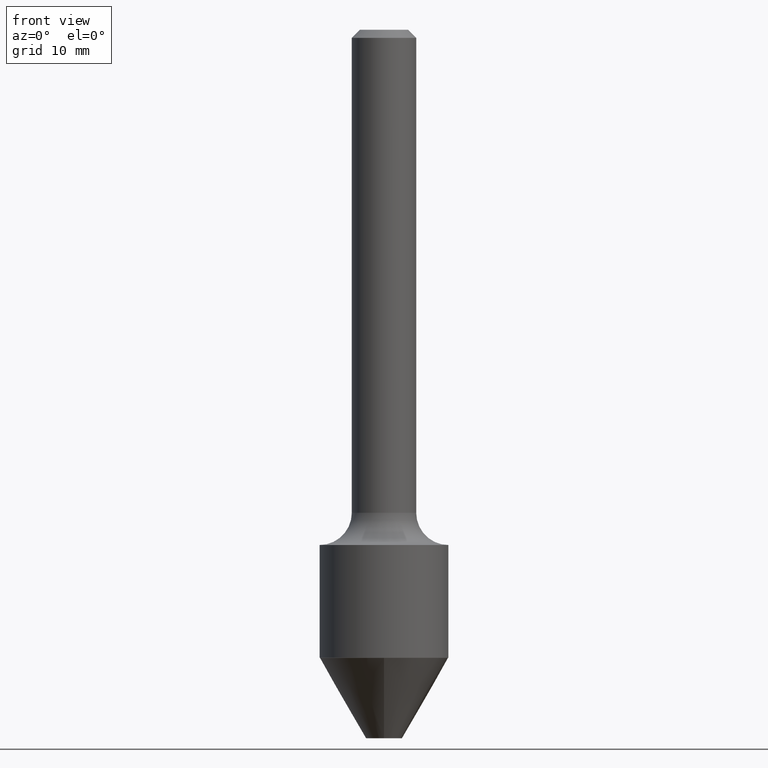
[diagram: clean part render]
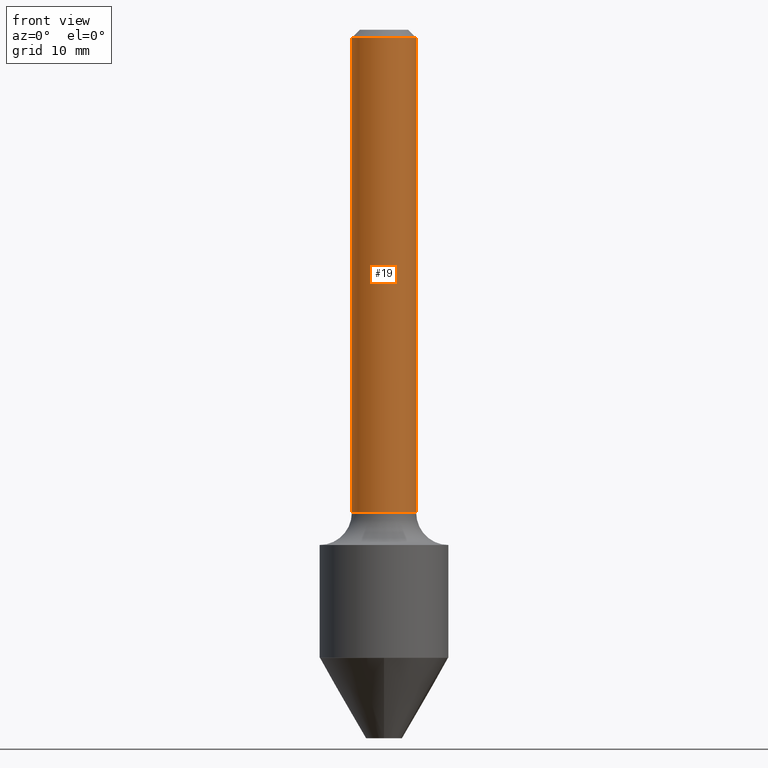
[diagram: same view with one face highlighted and labeled with its STEP entity id]
A machine part, front view. The second image highlights one B-rep face of the part: STEP entity #19.
In plain terms, the highlighted cylindrical surface (edge-blend (fillet) strip) has radius 3.175 mm, axis along (-0, 0, 1).
Its self-contained STEP definition (entity closure, byte-faithful):
#2 = VERTEX_POINT ( 'NONE', #326 ) ;
#3 = CYLINDRICAL_SURFACE ( 'NONE', #356, 0.1250000000000001110 ) ;
#19 = ADVANCED_FACE ( 'NONE', ( #46 ), #3, .T. ) ;
#27 = DIRECTION ( 'NONE',  ( -2.445468806185136597E-29, 3.491481338843145583E-15, 1.000000000000000000 ) ) ;
#36 = CARTESIAN_POINT ( 'NONE',  ( 0.1250000000000002498, -7.419397845041683624E-15, -1.875000000000000000 ) ) ;
#38 = DIRECTION ( 'NONE',  ( 1.000000000000000000, -6.982962677686267499E-15, 4.876176775795936353E-29 ) ) ;
#46 = FACE_OUTER_BOUND ( 'NONE', #158, .T. ) ;
#49 = LINE ( 'NONE', #376, #142 ) ;
#66 = CIRCLE ( 'NONE', #377, 0.1250000000000000000 ) ;
#75 = EDGE_CURVE ( 'NONE', #399, #2, #185, .T. ) ;
#78 = EDGE_CURVE ( 'NONE', #123, #399, #336, .T. ) ;
#107 = AXIS2_PLACEMENT_3D ( 'NONE', #502, #27, #223 ) ;
#118 = ORIENTED_EDGE ( 'NONE', *, *, #78, .T. ) ;
#123 = VERTEX_POINT ( 'NONE', #347 ) ;
#128 = CARTESIAN_POINT ( 'NONE',  ( 7.629862675297674822E-31, -1.089342177719068394E-16, -0.03120000000000019980 ) ) ;
#142 = VECTOR ( 'NONE', #419, 39.37007874015748143 ) ;
#153 = VERTEX_POINT ( 'NONE', #506 ) ;
#158 = EDGE_LOOP ( 'NONE', ( #277, #118, #337, #496 ) ) ;
#185 = LINE ( 'NONE', #379, #493 ) ;
#223 = DIRECTION ( 'NONE',  ( 1.000000000000000000, -6.982962677686264344E-15, 0.000000000000000000 ) ) ;
#250 = EDGE_CURVE ( 'NONE', #123, #153, #49, .T. ) ;
#277 = ORIENTED_EDGE ( 'NONE', *, *, #250, .F. ) ;
#295 = EDGE_CURVE ( 'NONE', #153, #2, #66, .T. ) ;
#326 = CARTESIAN_POINT ( 'NONE',  ( 0.1250000000000000000, -9.664964674933483956E-16, -0.03120000000000019980 ) ) ;
#336 = CIRCLE ( 'NONE', #107, 0.1250000000000002498 ) ;
#337 = ORIENTED_EDGE ( 'NONE', *, *, #75, .T. ) ;
#339 = DIRECTION ( 'NONE',  ( -2.445468806185136597E-29, 3.491481338843145583E-15, 1.000000000000000000 ) ) ;
#340 = DIRECTION ( 'NONE',  ( -2.445468806185136877E-29, 3.491481338843145188E-15, 1.000000000000000000 ) ) ;
#347 = CARTESIAN_POINT ( 'NONE',  ( -0.1250000000000002498, -5.432477464458405904E-15, -1.875000000000000000 ) ) ;
#356 = AXIS2_PLACEMENT_3D ( 'NONE', #485, #443, #38 ) ;
#376 = CARTESIAN_POINT ( 'NONE',  ( -0.1250000000000001110, 8.881784197001260212E-16, -6.148668862818637832E-30 ) ) ;
#377 = AXIS2_PLACEMENT_3D ( 'NONE', #128, #339, #498 ) ;
#379 = CARTESIAN_POINT ( 'NONE',  ( 0.1250000000000001110, -8.728703347107842263E-16, 6.095220969744926047E-30 ) ) ;
#399 = VERTEX_POINT ( 'NONE', #36 ) ;
#419 = DIRECTION ( 'NONE',  ( -2.445468806185136877E-29, 3.491481338843145188E-15, 1.000000000000000000 ) ) ;
#443 = DIRECTION ( 'NONE',  ( -2.445468806185136597E-29, 3.491481338843145583E-15, 1.000000000000000000 ) ) ;
#485 = CARTESIAN_POINT ( 'NONE',  ( 0.000000000000000000, 0.000000000000000000, 0.000000000000000000 ) ) ;
#493 = VECTOR ( 'NONE', #340, 39.37007874015748143 ) ;
#496 = ORIENTED_EDGE ( 'NONE', *, *, #295, .F. ) ;
#498 = DIRECTION ( 'NONE',  ( 1.000000000000000000, -6.982962677686266711E-15, 0.000000000000000000 ) ) ;
#502 = CARTESIAN_POINT ( 'NONE',  ( 4.585254011597131119E-29, -6.546527510330898707E-15, -1.875000000000000000 ) ) ;
#506 = CARTESIAN_POINT ( 'NONE',  ( -0.1250000000000000000, 7.639361169388764871E-16, -0.03120000000000019980 ) ) ;